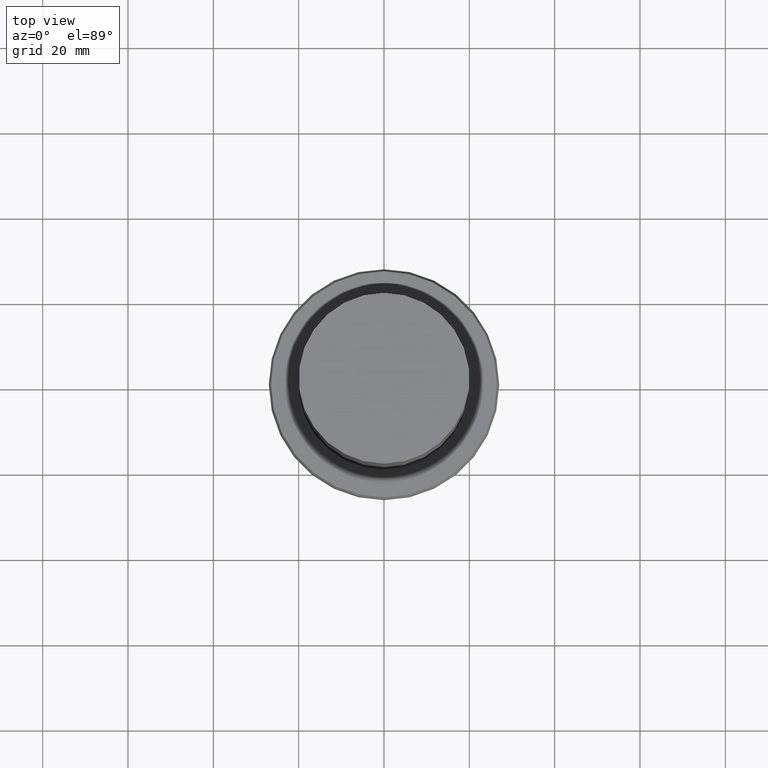
[diagram: clean part render]
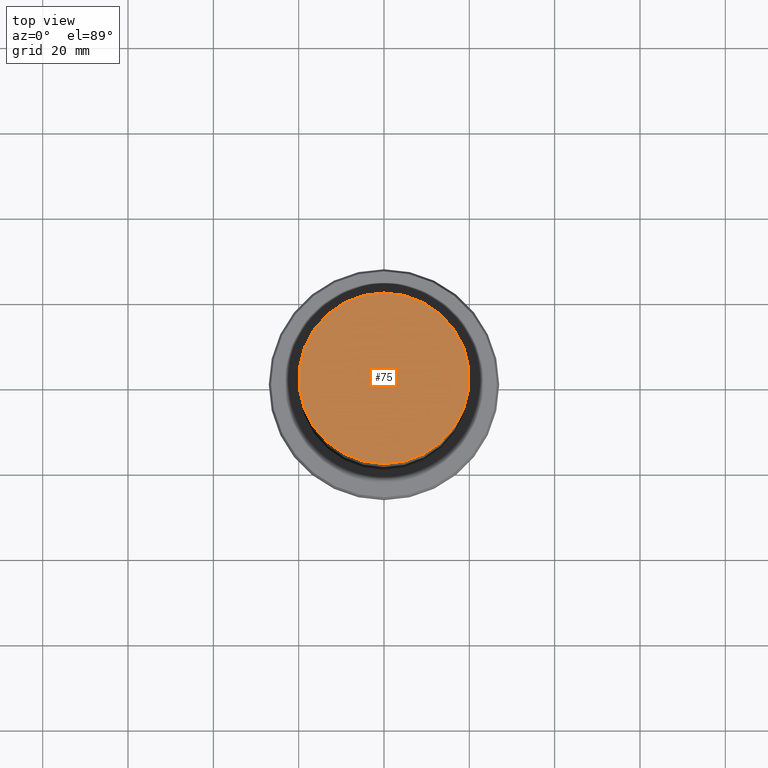
[diagram: same view with one face highlighted and labeled with its STEP entity id]
A machine part, top view. The second image highlights one B-rep face of the part: STEP entity #75.
In plain terms, the highlighted planar face has unit normal (-0, 0, 1).
Its self-contained STEP definition (entity closure, byte-faithful):
#70=EDGE_CURVE('Unnamed[1]',#143,#143,#144,.T.);
#75=ADVANCED_FACE('Unnamed[1]',(#150),#151,.T.);
#143=VERTEX_POINT('',#222);
#144=CIRCLE('',#223,20.0000000000027);
#150=FACE_OUTER_BOUND('',#231,.T.);
#151=PLANE('',#232);
#222=CARTESIAN_POINT('',(-9.39916418345641E-015,20.0000000000027,153.500000000008));
#223=AXIS2_PLACEMENT_3D('',#293,#294,#295);
#231=EDGE_LOOP('',(#300));
#232=AXIS2_PLACEMENT_3D('',#301,#302,#303);
#293=CARTESIAN_POINT('',(-9.39916418345641E-015,-1.87983283669128E-014,153.500000000008));
#294=DIRECTION('',(6.12323399573677E-017,1.22464679914744E-016,-1.0));
#295=DIRECTION('',(-1.23259516440789E-032,1.0,1.22464679914744E-016));
#300=ORIENTED_EDGE('',*,*,#70,.F.);
#301=CARTESIAN_POINT('',(-9.39916418345644E-015,10.0000000000013,153.500000000008));
#302=DIRECTION('',(-6.12323399573677E-017,4.81944413517655E-014,1.0));
#303=DIRECTION('',(-2.94623126417595E-030,-1.0,4.81944413517655E-014));